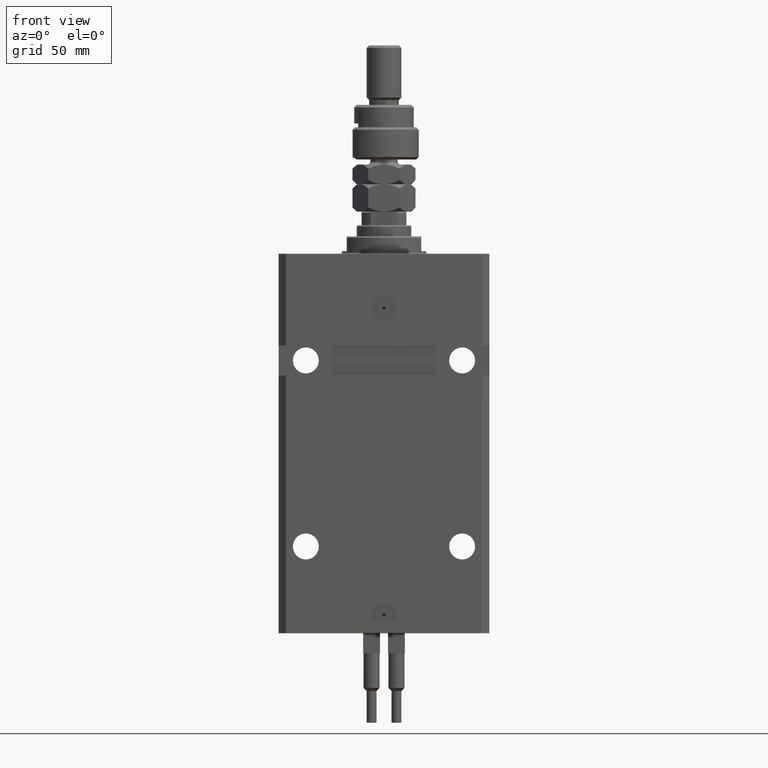
[diagram: clean part render]
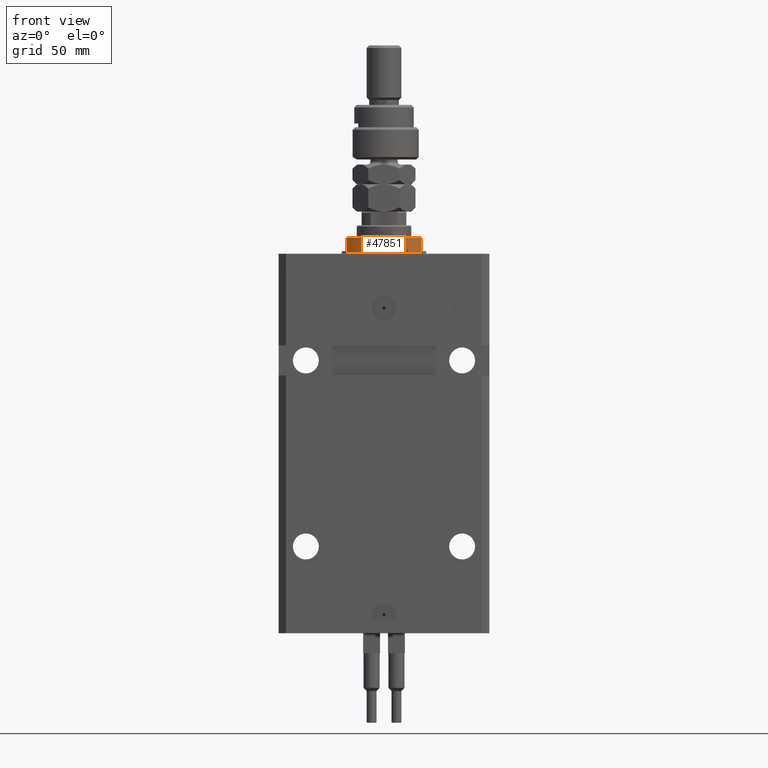
[diagram: same view with one face highlighted and labeled with its STEP entity id]
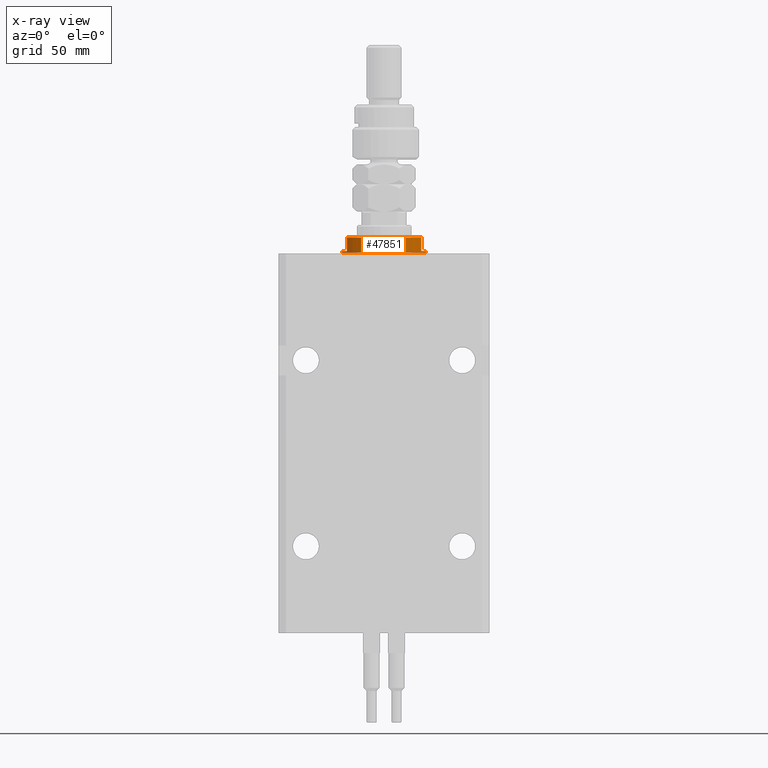
[diagram: x-ray of the same camera — body ghosted, the highlighted face saturated]
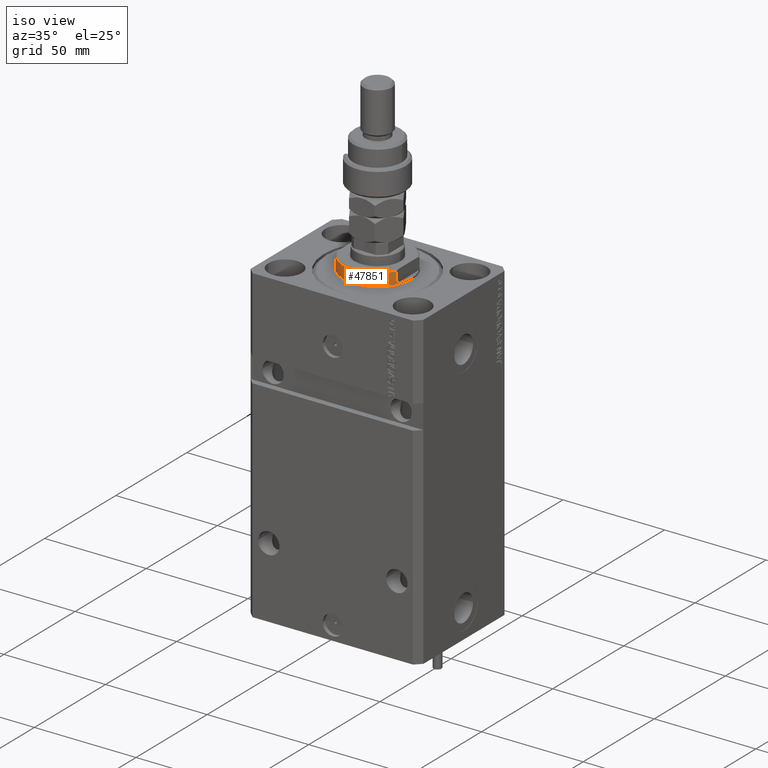
[diagram: same view with one face highlighted and labeled with its STEP entity id]
A machine part, front view. The second image highlights one B-rep face of the part: STEP entity #47851.
The next image is the same camera in x-ray: the body ghosted, the highlighted face saturated — about 0% of this face is hidden behind the body in this view.
A second angle (iso view) of the same face is appended — the face is thin or edge-on in the first view.
In plain terms, the highlighted cylindrical surface (partial cylindrical patch) has radius 17 mm, axis along (0, 0, -1).
Its self-contained STEP definition (entity closure, byte-faithful):
#93 = DIRECTION ( 'NONE',  ( -1.000000000000000000, 0.000000000000000000, 0.000000000000000000 ) ) ;
#618 = DIRECTION ( 'NONE',  ( 0.000000000000000000, 0.000000000000000000, -1.000000000000000000 ) ) ;
#2982 = CARTESIAN_POINT ( 'NONE',  ( 0.000000000000000000, 0.000000000000000000, -0.4999999999999995559 ) ) ;
#3876 = EDGE_CURVE ( 'NONE', #28684, #41076, #42699, .T. ) ;
#3925 = DIRECTION ( 'NONE',  ( 0.000000000000000000, 0.000000000000000000, -1.000000000000000000 ) ) ;
#4750 = VERTEX_POINT ( 'NONE', #25555 ) ;
#4763 = CARTESIAN_POINT ( 'NONE',  ( -15.00000000000000000, -8.000000000000001776, -7.000000000000000000 ) ) ;
#6105 = EDGE_CURVE ( 'NONE', #4750, #36550, #12949, .T. ) ;
#6821 = CARTESIAN_POINT ( 'NONE',  ( 15.00000000000000000, -8.000000000000001776, -7.000000000000000000 ) ) ;
#7490 = ORIENTED_EDGE ( 'NONE', *, *, #24542, .F. ) ;
#7917 = LINE ( 'NONE', #8174, #44400 ) ;
#7990 = CARTESIAN_POINT ( 'NONE',  ( 0.000000000000000000, 0.000000000000000000, -1.000000000000000000 ) ) ;
#8174 = CARTESIAN_POINT ( 'NONE',  ( 17.00000000000000000, 0.000000000000000000, -7.000000000000000000 ) ) ;
#8508 = ORIENTED_EDGE ( 'NONE', *, *, #6105, .F. ) ;
#9019 = CARTESIAN_POINT ( 'NONE',  ( -17.00000000000000000, 2.081899558550500280E-15, -7.000000000000000000 ) ) ;
#9461 = FACE_OUTER_BOUND ( 'NONE', #24471, .T. ) ;
#9713 = VECTOR ( 'NONE', #24228, 1000.000000000000000 ) ;
#10349 = VECTOR ( 'NONE', #22826, 1000.000000000000000 ) ;
#10433 = EDGE_CURVE ( 'NONE', #35815, #11182, #36058, .T. ) ;
#10672 = DIRECTION ( 'NONE',  ( -1.000000000000000000, 0.000000000000000000, 0.000000000000000000 ) ) ;
#11182 = VERTEX_POINT ( 'NONE', #38120 ) ;
#11829 = CARTESIAN_POINT ( 'NONE',  ( -15.00000000000000000, -8.000000000000001776, -6.500000000000014211 ) ) ;
#12949 = CIRCLE ( 'NONE', #48068, 17.00000000000000000 ) ;
#13139 = DIRECTION ( 'NONE',  ( 1.000000000000000000, 0.000000000000000000, 0.000000000000000000 ) ) ;
#14228 = EDGE_CURVE ( 'NONE', #4750, #27818, #40908, .T. ) ;
#14908 = CARTESIAN_POINT ( 'NONE',  ( 15.00000000000000000, -8.000000000000001776, -6.500000000000013323 ) ) ;
#15660 = VERTEX_POINT ( 'NONE', #25671 ) ;
#16817 = AXIS2_PLACEMENT_3D ( 'NONE', #2982, #18989, #19242 ) ;
#17467 = ORIENTED_EDGE ( 'NONE', *, *, #14228, .T. ) ;
#18989 = DIRECTION ( 'NONE',  ( -0.000000000000000000, -0.000000000000000000, -1.000000000000000000 ) ) ;
#19242 = DIRECTION ( 'NONE',  ( 1.000000000000000000, 0.000000000000000000, 0.000000000000000000 ) ) ;
#20189 = DIRECTION ( 'NONE',  ( -1.000000000000000000, 0.000000000000000000, 0.000000000000000000 ) ) ;
#20244 = DIRECTION ( 'NONE',  ( 0.000000000000000000, 0.000000000000000000, -1.000000000000000000 ) ) ;
#22826 = DIRECTION ( 'NONE',  ( 0.000000000000000000, 0.000000000000000000, -1.000000000000000000 ) ) ;
#23125 = AXIS2_PLACEMENT_3D ( 'NONE', #7990, #3925, #20189 ) ;
#23481 = CARTESIAN_POINT ( 'NONE',  ( 14.99999999999999645, -8.000000000000003553, -1.000000000000000000 ) ) ;
#24228 = DIRECTION ( 'NONE',  ( -0.000000000000000000, -0.000000000000000000, 1.000000000000000000 ) ) ;
#24471 = EDGE_LOOP ( 'NONE', ( #7490, #8508, #17467, #46449, #46994, #46540, #45714, #42988 ) ) ;
#24542 = EDGE_CURVE ( 'NONE', #36550, #11182, #32873, .T. ) ;
#24780 = EDGE_CURVE ( 'NONE', #15660, #28684, #47348, .T. ) ;
#25555 = CARTESIAN_POINT ( 'NONE',  ( -14.99999999999999645, -8.000000000000003553, -1.000000000000000000 ) ) ;
#25671 = CARTESIAN_POINT ( 'NONE',  ( 17.00000000000000000, 0.000000000000000000, -1.000000000000000000 ) ) ;
#26164 = CARTESIAN_POINT ( 'NONE',  ( 0.000000000000000000, 0.000000000000000000, -6.500000000000013323 ) ) ;
#27818 = VERTEX_POINT ( 'NONE', #11829 ) ;
#28684 = VERTEX_POINT ( 'NONE', #23481 ) ;
#29388 = CARTESIAN_POINT ( 'NONE',  ( 0.000000000000000000, 0.000000000000000000, -7.000000000000000000 ) ) ;
#32873 = LINE ( 'NONE', #9019, #9713 ) ;
#33066 = DIRECTION ( 'NONE',  ( -0.000000000000000000, -0.000000000000000000, 1.000000000000000000 ) ) ;
#35815 = VERTEX_POINT ( 'NONE', #37353 ) ;
#36058 = CIRCLE ( 'NONE', #16817, 17.00000000000000000 ) ;
#36550 = VERTEX_POINT ( 'NONE', #47574 ) ;
#37353 = CARTESIAN_POINT ( 'NONE',  ( 17.00000000000000000, 0.000000000000000000, -0.4999999999999995559 ) ) ;
#38120 = CARTESIAN_POINT ( 'NONE',  ( -17.00000000000000000, 2.081899558550500280E-15, -0.4999999999999995559 ) ) ;
#38197 = DIRECTION ( 'NONE',  ( 0.000000000000000000, 0.000000000000000000, 1.000000000000000000 ) ) ;
#38705 = VECTOR ( 'NONE', #20244, 1000.000000000000000 ) ;
#39408 = EDGE_CURVE ( 'NONE', #27818, #41076, #50238, .T. ) ;
#40135 = DIRECTION ( 'NONE',  ( -0.000000000000000000, -0.000000000000000000, 1.000000000000000000 ) ) ;
#40908 = LINE ( 'NONE', #4763, #38705 ) ;
#41076 = VERTEX_POINT ( 'NONE', #14908 ) ;
#42699 = LINE ( 'NONE', #6821, #10349 ) ;
#42988 = ORIENTED_EDGE ( 'NONE', *, *, #10433, .T. ) ;
#43534 = EDGE_CURVE ( 'NONE', #15660, #35815, #7917, .T. ) ;
#43559 = CARTESIAN_POINT ( 'NONE',  ( 0.000000000000000000, 0.000000000000000000, -1.000000000000000000 ) ) ;
#44400 = VECTOR ( 'NONE', #40135, 1000.000000000000000 ) ;
#44588 = AXIS2_PLACEMENT_3D ( 'NONE', #29388, #33066, #13139 ) ;
#45077 = CYLINDRICAL_SURFACE ( 'NONE', #44588, 17.00000000000000000 ) ;
#45714 = ORIENTED_EDGE ( 'NONE', *, *, #43534, .T. ) ;
#46449 = ORIENTED_EDGE ( 'NONE', *, *, #39408, .T. ) ;
#46540 = ORIENTED_EDGE ( 'NONE', *, *, #24780, .F. ) ;
#46859 = AXIS2_PLACEMENT_3D ( 'NONE', #26164, #38197, #10672 ) ;
#46994 = ORIENTED_EDGE ( 'NONE', *, *, #3876, .F. ) ;
#47348 = CIRCLE ( 'NONE', #23125, 17.00000000000000000 ) ;
#47574 = CARTESIAN_POINT ( 'NONE',  ( -17.00000000000000000, 2.081899558550500280E-15, -1.000000000000000000 ) ) ;
#47851 = ADVANCED_FACE ( 'NONE', ( #9461 ), #45077, .T. ) ;
#48068 = AXIS2_PLACEMENT_3D ( 'NONE', #43559, #618, #93 ) ;
#50238 = CIRCLE ( 'NONE', #46859, 17.00000000000000000 ) ;